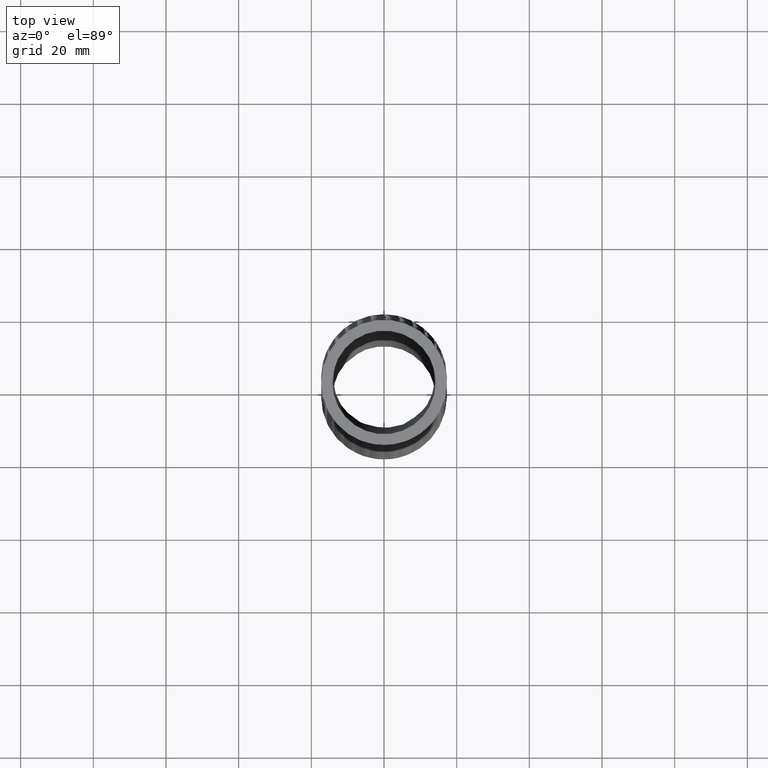
[diagram: clean part render]
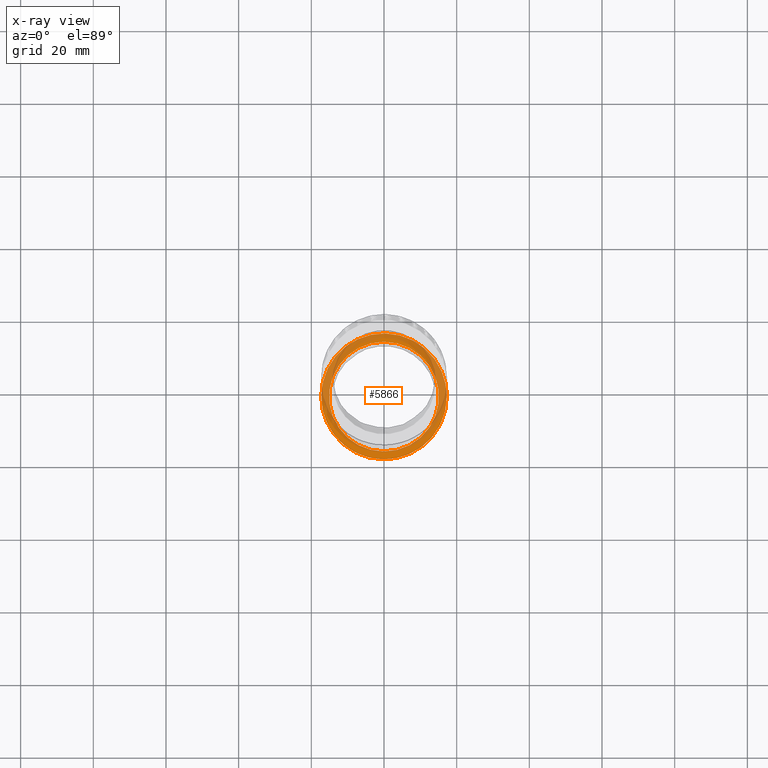
[diagram: x-ray — body ghosted, one internal face saturated and labeled with its STEP entity id]
A machine part, top view, then the same camera in x-ray: the body is ghosted and one INTERNAL B-rep face — a face not visible from any outside direction — is saturated and labeled: STEP entity #5866.
In plain terms, the highlighted planar face has unit normal (0, -0, 1).
Its self-contained STEP definition (entity closure, byte-faithful):
#4209 = EDGE_CURVE ( 'NONE', #4211, #4214, #15574, .T. ) ;
#4211 = VERTEX_POINT ( 'NONE', #15575 ) ;
#4214 = VERTEX_POINT ( 'NONE', #15572 ) ;
#4464 = EDGE_CURVE ( 'NONE', #4214, #4211, #19194, .T. ) ;
#5020 = VERTEX_POINT ( 'NONE', #10822 ) ;
#5021 = VERTEX_POINT ( 'NONE', #10821 ) ;
#5025 = EDGE_CURVE ( 'NONE', #5021, #5020, #10820, .T. ) ;
#5850 = EDGE_CURVE ( 'NONE', #5020, #5021, #20248, .T. ) ;
#5857 = ORIENTED_EDGE ( 'NONE', *, *, #5025, .F. ) ;
#5859 = ORIENTED_EDGE ( 'NONE', *, *, #5850, .F. ) ;
#5863 = ORIENTED_EDGE ( 'NONE', *, *, #4464, .F. ) ;
#5864 = EDGE_LOOP ( 'NONE', ( #5857, #5859 ) ) ;
#5866 = ADVANCED_FACE ( 'NONE', ( #20300, #20299 ), #20332, .T. ) ;
#5867 = ORIENTED_EDGE ( 'NONE', *, *, #4209, .F. ) ;
#5869 = EDGE_LOOP ( 'NONE', ( #5867, #5863 ) ) ;
#10816 = DIRECTION ( 'NONE',  ( 0.0000000000000000000, -1.000000000000000000, 0.0000000000000000000 ) ) ;
#10817 = DIRECTION ( 'NONE',  ( 0.0000000000000000000, -1.734723475976807100E-018, 1.000000000000000000 ) ) ;
#10818 = CARTESIAN_POINT ( 'NONE',  ( 0.0000000000000000000, -0.02362332709236139200, -7.473392953530790800 ) ) ;
#10819 = AXIS2_PLACEMENT_3D ( 'NONE', #10818, #10817, #10816 ) ;
#10820 = CIRCLE ( 'NONE', #10819, 0.5950000000000002000 ) ;
#10821 = CARTESIAN_POINT ( 'NONE',  ( 0.0000000000000000000, -0.6186233270923615600, -7.473392953530790800 ) ) ;
#10822 = CARTESIAN_POINT ( 'NONE',  ( 7.286648454926752700E-017, 0.5713766729076387200, -7.473392953530790800 ) ) ;
#15528 = CARTESIAN_POINT ( 'NONE',  ( 0.1106814445971021100, -0.6946099106361443000, -7.473392953530789000 ) ) ;
#15530 = CARTESIAN_POINT ( 'NONE',  ( 0.1759460441836651300, -0.6816101734470223500, -7.473392953530790800 ) ) ;
#15532 = CARTESIAN_POINT ( 'NONE',  ( 0.2185521832983498300, -0.6687187943583023900, -7.473392953530796100 ) ) ;
#15534 = CARTESIAN_POINT ( 'NONE',  ( 0.3016120015362772600, -0.6342283596159969900, -7.473392953530794400 ) ) ;
#15536 = CARTESIAN_POINT ( 'NONE',  ( 0.3407598208029017400, -0.6131815282807715500, -7.473392953530791700 ) ) ;
#15538 = CARTESIAN_POINT ( 'NONE',  ( 0.3960545227818804100, -0.5761420361169332600, -7.473392953530794400 ) ) ;
#15540 = CARTESIAN_POINT ( 'NONE',  ( 0.4139106677936285600, -0.5628772133752308900, -7.473392953530787300 ) ) ;
#15542 = CARTESIAN_POINT ( 'NONE',  ( 0.4484457992491509600, -0.5344689223631669000, -7.473392953530787300 ) ) ;
#15544 = CARTESIAN_POINT ( 'NONE',  ( 0.4651530502151605100, -0.5192789588199441300, -7.473392953530788100 ) ) ;
#15546 = CARTESIAN_POINT ( 'NONE',  ( 0.5124013336726713800, -0.4718683399283489200, -7.473392953530787300 ) ) ;
#15548 = CARTESIAN_POINT ( 'NONE',  ( 0.5404818473240107200, -0.4375381150760500600, -7.473392953530787300 ) ) ;
#15550 = CARTESIAN_POINT ( 'NONE',  ( 0.5775240784299485700, -0.3819970731399520700, -7.473392953530787300 ) ) ;
#15552 = CARTESIAN_POINT ( 'NONE',  ( 0.5890579060613074800, -0.3627301762273905100, -7.473392953530791700 ) ) ;
#15554 = CARTESIAN_POINT ( 'NONE',  ( 0.6101774119966828500, -0.3231205662017073200, -7.473392953530790800 ) ) ;
#15556 = CARTESIAN_POINT ( 'NONE',  ( 0.6196820910986999800, -0.3029486601395903200, -7.473392953530788100 ) ) ;
#15558 = CARTESIAN_POINT ( 'NONE',  ( 0.6451306485290873000, -0.2413663428121725100, -7.473392953530789000 ) ) ;
#15560 = CARTESIAN_POINT ( 'NONE',  ( 0.6580379510490763600, -0.1988993892499501000, -7.473392953530794400 ) ) ;
#15562 = CARTESIAN_POINT ( 'NONE',  ( 0.6711710143586221400, -0.1330320346742376600, -7.473392953530794400 ) ) ;
#15564 = CARTESIAN_POINT ( 'NONE',  ( 0.6744894098091518400, -0.1107215655237049900, -7.473392953530790800 ) ) ;
#15566 = CARTESIAN_POINT ( 'NONE',  ( 0.6788935072329025400, -0.06609972855633375300, -7.473392953530790800 ) ) ;
#15568 = CARTESIAN_POINT ( 'NONE',  ( 0.6799999999999998300, -0.04369758788995287800, -7.473392953530791700 ) ) ;
#15569 = CARTESIAN_POINT ( 'NONE',  ( 0.6799999999999998300, -0.02120331437920919300, -7.473392953530791700 ) ) ;
#15572 = CARTESIAN_POINT ( 'NONE',  ( -0.6799999999999998300, -0.02120331437920896400, -7.473392953530793500 ) ) ;
#15574 = B_SPLINE_CURVE_WITH_KNOTS ( 'NONE', 3,
 ( #15569, #15568, #15566, #15564, #15562, #15560, #15558, #15556, #15554, #15552, #15550, #15548, #15546, #15544, #15542, #15540, #15538, #15536, #15534, #15532, #15530, #15528, #15685, #15684, #15683, #15681, #15679, #15677, #15675, #15673, #15671, #15669, #15667, #15665, #15663, #15661, #15659, #15657, #15655, #15653, #15651, #15649, #15647, #15645, #15643, #15641, #15639, #15637, #15635 ),
 .UNSPECIFIED., .F., .F.,
 ( 4, 2, 2, 2, 2, 2, 2, 2, 2, 2, 2, 2, 2, 2, 2, 2, 2, 2, 1, 2, 2, 2, 2, 2, 4 ),
 ( 0.0000000000000000000, 0.001708152414843739300, 0.003416304829687478700, 0.006832609659374957300, 0.008540762074218697500, 0.01024891448906243900, 0.01366521931874991600, 0.01537337173359365700, 0.01708152414843739500, 0.02049782897812487500, 0.02391413380781235200, 0.02562228622265609300, 0.02733043863749982900, 0.03074674346718730600, 0.03245489588203104300, 0.03416304829687478300, 0.03757935312656226400, 0.03928750554140600400, 0.04099565795624974400, 0.04270381037109348400, 0.04441196278593722400, 0.04782826761562469800, 0.04953642003046843100, 0.05124457244531217100, 0.05466087727499964500 ),
 .UNSPECIFIED. ) ;
#15575 = CARTESIAN_POINT ( 'NONE',  ( 0.6799999999999998300, -0.02120331437920919300, -7.473392953530791700 ) ) ;
#15635 = CARTESIAN_POINT ( 'NONE',  ( -0.6799999999999998300, -0.02120331437920896400, -7.473392953530793500 ) ) ;
#15637 = CARTESIAN_POINT ( 'NONE',  ( -0.6799999999999997200, -0.06581397836407598700, -7.473392953530789000 ) ) ;
#15639 = CARTESIAN_POINT ( 'NONE',  ( -0.6756789233401688800, -0.1099574831942072600, -7.473392953530783700 ) ) ;
#15641 = CARTESIAN_POINT ( 'NONE',  ( -0.6627525627692753000, -0.1754759877235448900, -7.473392953530784600 ) ) ;
#15643 = CARTESIAN_POINT ( 'NONE',  ( -0.6573334567097675100, -0.1972901030265582500, -7.473392953530796100 ) ) ;
#15645 = CARTESIAN_POINT ( 'NONE',  ( -0.6443760401877058900, -0.2402451855545519900, -7.473392953530794400 ) ) ;
#15647 = CARTESIAN_POINT ( 'NONE',  ( -0.6368914698754254400, -0.2612439795765459900, -7.473392953530793500 ) ) ;
#15649 = CARTESIAN_POINT ( 'NONE',  ( -0.6115081778701677600, -0.3228460065667208000, -7.473392953530796100 ) ) ;
#15651 = CARTESIAN_POINT ( 'NONE',  ( -0.5907077701661559400, -0.3620681613112920500, -7.473392953530788100 ) ) ;
#15653 = CARTESIAN_POINT ( 'NONE',  ( -0.5535271168347287700, -0.4180551497474374000, -7.473392953530787300 ) ) ;
#15655 = CARTESIAN_POINT ( 'NONE',  ( -0.5401485299771056100, -0.4361853514680376100, -7.473392953530791700 ) ) ;
#15657 = CARTESIAN_POINT ( 'NONE',  ( -0.5119656598711065400, -0.4707011331933605400, -7.473392953530791700 ) ) ;
#15659 = CARTESIAN_POINT ( 'NONE',  ( -0.4822272560112738600, -0.5036763332455275200, -7.473392953530796100 ) ) ;
#15661 = CARTESIAN_POINT ( 'NONE',  ( -0.4494175947961692200, -0.5336097974411691000, -7.473392953530788100 ) ) ;
#15663 = CARTESIAN_POINT ( 'NONE',  ( -0.4150477313572548100, -0.5619980563678841400, -7.473392953530789000 ) ) ;
#15665 = CARTESIAN_POINT ( 'NONE',  ( -0.3969764173826343900, -0.5754870828903108100, -7.473392953530797000 ) ) ;
#15667 = CARTESIAN_POINT ( 'NONE',  ( -0.3412200150845354800, -0.6129458261486441200, -7.473392953530797000 ) ) ;
#15669 = CARTESIAN_POINT ( 'NONE',  ( -0.3021104290278503500, -0.6339419358593502100, -7.473392953530797000 ) ) ;
#15671 = CARTESIAN_POINT ( 'NONE',  ( -0.2406012969264890400, -0.6596012006070026700, -7.473392953530798800 ) ) ;
#15673 = CARTESIAN_POINT ( 'NONE',  ( -0.2196207411613793300, -0.6671748600276422600, -7.473392953530793500 ) ) ;
#15675 = CARTESIAN_POINT ( 'NONE',  ( -0.1766729293072303300, -0.6802983485019713500, -7.473392953530797900 ) ) ;
#15677 = CARTESIAN_POINT ( 'NONE',  ( -0.1549142682663978100, -0.6857764967551680500, -7.473392953530792600 ) ) ;
#15679 = CARTESIAN_POINT ( 'NONE',  ( -0.08946346908533660300, -0.6988809778855594700, -7.473392953530793500 ) ) ;
#15681 = CARTESIAN_POINT ( 'NONE',  ( -0.04532392179567911600, -0.7032941409956035000, -7.473392953530791700 ) ) ;
#15683 = CARTESIAN_POINT ( 'NONE',  ( 0.02165193086968562900, -0.7033606704831747400, -7.473392953530789000 ) ) ;
#15684 = CARTESIAN_POINT ( 'NONE',  ( 0.04421354491846982100, -0.7022643462721158700, -7.473392953530789000 ) ) ;
#15685 = CARTESIAN_POINT ( 'NONE',  ( 0.08868805822265121700, -0.6978836031342600100, -7.473392953530790800 ) ) ;
#18677 = CARTESIAN_POINT ( 'NONE',  ( 0.4494649218585178900, 0.4926025345701008400, -7.473392953530793500 ) ) ;
#18678 = CARTESIAN_POINT ( 'NONE',  ( 0.4152322302581350500, 0.5208114088829064500, -7.473392953530787300 ) ) ;
#18680 = CARTESIAN_POINT ( 'NONE',  ( 0.3597468441356566600, 0.5580642308067261800, -7.473392953530784600 ) ) ;
#18681 = CARTESIAN_POINT ( 'NONE',  ( 0.3404521763538087000, 0.5696865056794939700, -7.473392953530793500 ) ) ;
#18682 = CARTESIAN_POINT ( 'NONE',  ( 0.3009569161739780200, 0.5908750960819537700, -7.473392953530792600 ) ) ;
#18684 = CARTESIAN_POINT ( 'NONE',  ( 0.2808276231456927100, 0.6004188479264110900, -7.473392953530788100 ) ) ;
#18685 = CARTESIAN_POINT ( 'NONE',  ( 0.2193256916414474400, 0.6259836271252307000, -7.473392953530787300 ) ) ;
#18686 = CARTESIAN_POINT ( 'NONE',  ( 0.1768497581960380700, 0.6389677884803242100, -7.473392953530796100 ) ) ;
#18704 = CARTESIAN_POINT ( 'NONE',  ( 0.1108512023999562700, 0.6521554194082938000, -7.473392953530797000 ) ) ;
#18705 = CARTESIAN_POINT ( 'NONE',  ( 0.08861291804595707000, 0.6554556802482896000, -7.473392953530791700 ) ) ;
#18706 = CARTESIAN_POINT ( 'NONE',  ( 0.04430413425603842900, 0.6598202543947588900, -7.473392953530790800 ) ) ;
#19157 = CARTESIAN_POINT ( 'NONE',  ( 0.02213758800183341200, 0.6609046537845353300, -7.473392953530791700 ) ) ;
#19159 = CARTESIAN_POINT ( 'NONE',  ( -0.02221954425893603000, 0.6609019725635294500, -7.473392953530792600 ) ) ;
#19160 = CARTESIAN_POINT ( 'NONE',  ( -0.04441012988117885900, 0.6598149266678460200, -7.473392953530788100 ) ) ;
#19161 = CARTESIAN_POINT ( 'NONE',  ( -0.08881577047815579500, 0.6554305496467123200, -7.473392953530789000 ) ) ;
#19162 = CARTESIAN_POINT ( 'NONE',  ( -0.1111498736207185300, 0.6521034859475641800, -7.473392953530794400 ) ) ;
#19163 = CARTESIAN_POINT ( 'NONE',  ( -0.1769335723764166000, 0.6389354278222230100, -7.473392953530792600 ) ) ;
#19164 = CARTESIAN_POINT ( 'NONE',  ( -0.2193701949169168100, 0.6259718741190324300, -7.473392953530790800 ) ) ;
#19165 = CARTESIAN_POINT ( 'NONE',  ( -0.2809372676021556500, 0.6003698877480053700, -7.473392953530791700 ) ) ;
#19166 = CARTESIAN_POINT ( 'NONE',  ( -0.3011091733115234800, 0.5908024847482695700, -7.473392953530792600 ) ) ;
#19168 = CARTESIAN_POINT ( 'NONE',  ( -0.3407278582520795200, 0.5695294358863729500, -7.473392953530790800 ) ) ;
#19169 = CARTESIAN_POINT ( 'NONE',  ( -0.3598810461574033500, 0.5579787548400966200, -7.473392953530793500 ) ) ;
#19171 = CARTESIAN_POINT ( 'NONE',  ( -0.4152571258501341900, 0.5207854029347266400, -7.473392953530792600 ) ) ;
#19172 = CARTESIAN_POINT ( 'NONE',  ( -0.4494992889591237200, 0.4925804446604543100, -7.473392953530788100 ) ) ;
#19173 = CARTESIAN_POINT ( 'NONE',  ( -0.4967994504369265300, 0.4450948838828144300, -7.473392953530786400 ) ) ;
#19174 = CARTESIAN_POINT ( 'NONE',  ( -0.5119312374311124600, 0.4283236857098821100, -7.473392953530792600 ) ) ;
#19176 = CARTESIAN_POINT ( 'NONE',  ( -0.5401772904616607400, 0.3937328546193217300, -7.473392953530794400 ) ) ;
#19177 = CARTESIAN_POINT ( 'NONE',  ( -0.5533708132744131800, 0.3758453262495664000, -7.473392953530789000 ) ) ;
#19178 = CARTESIAN_POINT ( 'NONE',  ( -0.5779376110257956600, 0.3389107344731666600, -7.473392953530789000 ) ) ;
#19179 = CARTESIAN_POINT ( 'NONE',  ( -0.5893108273869766000, 0.3198636337514970100, -7.473392953530787300 ) ) ;
#19181 = CARTESIAN_POINT ( 'NONE',  ( -0.6102228325964940100, 0.2806008645520662300, -7.473392953530787300 ) ) ;
#19182 = CARTESIAN_POINT ( 'NONE',  ( -0.6197800036957553700, 0.2603407433608925200, -7.473392953530791700 ) ) ;
#19184 = CARTESIAN_POINT ( 'NONE',  ( -0.6454813586075927000, 0.1980254379846947100, -7.473392953530791700 ) ) ;
#19185 = CARTESIAN_POINT ( 'NONE',  ( -0.6582841155655089200, 0.1554704134391146100, -7.473392953530789000 ) ) ;
#19187 = CARTESIAN_POINT ( 'NONE',  ( -0.6712381769892844500, 0.09017835861537119900, -7.473392953530787300 ) ) ;
#19188 = CARTESIAN_POINT ( 'NONE',  ( -0.6745068488510542700, 0.06816929633153344400, -7.473392953530786400 ) ) ;
#19189 = CARTESIAN_POINT ( 'NONE',  ( -0.6788947031370092800, 0.02364922274214127000, -7.473392953530787300 ) ) ;
#19191 = CARTESIAN_POINT ( 'NONE',  ( -0.6799999999999998300, 0.001102897452116923600, -7.473392953530790800 ) ) ;
#19192 = CARTESIAN_POINT ( 'NONE',  ( -0.6799999999999998300, -0.02120331437920896400, -7.473392953530793500 ) ) ;
#19194 = B_SPLINE_CURVE_WITH_KNOTS ( 'NONE', 3,
 ( #19192, #19191, #19189, #19188, #19187, #19185, #19184, #19182, #19181, #19179, #19178, #19177, #19176, #19174, #19173, #19172, #19171, #19169, #19168, #19166, #19165, #19164, #19163, #19162, #19161, #19160, #19159, #19157, #18706, #18705, #18704, #18686, #18685, #18684, #18682, #18681, #18680, #18678, #18677, #19278, #19277, #19274, #19273, #19271, #19269, #19267, #19265, #19263, #19262, #19261, #19259, #19258, #19255, #19253 ),
 .UNSPECIFIED., .F., .F.,
 ( 4, 2, 2, 2, 2, 2, 2, 2, 2, 2, 2, 2, 2, 2, 2, 2, 2, 2, 2, 2, 2, 2, 2, 2, 2, 2, 4 ),
 ( 0.05466087727499964500, 0.05636909706830377900, 0.05807731686160791400, 0.06149375644821617600, 0.06320197624152031100, 0.06491019603482443800, 0.06661841582812858000, 0.06832663562143270800, 0.07174307520804097700, 0.07345129500134510400, 0.07515951479464924600, 0.07857595438125751500, 0.08028417417456164300, 0.08199239396786578400, 0.08370061376116991200, 0.08540883355447405300, 0.08882527314108232300, 0.09053349293438645000, 0.09224171272769057800, 0.09565815231429884700, 0.09736637210760298900, 0.09907459190090711600, 0.1024910314875153900, 0.1041992512808195300, 0.1059074710741236500, 0.1076156908674277800, 0.1093239106607319200 ),
 .UNSPECIFIED. ) ;
#19253 = CARTESIAN_POINT ( 'NONE',  ( 0.6799999999999998300, -0.02120331437920919300, -7.473392953530791700 ) ) ;
#19255 = CARTESIAN_POINT ( 'NONE',  ( 0.6799999999999996000, 0.001291846423267837800, -7.473392953530788100 ) ) ;
#19258 = CARTESIAN_POINT ( 'NONE',  ( 0.6788831792186593700, 0.02380218608407059400, -7.473392953530787300 ) ) ;
#19259 = CARTESIAN_POINT ( 'NONE',  ( 0.6744970506680924000, 0.06823249565757776000, -7.473392953530789000 ) ) ;
#19261 = CARTESIAN_POINT ( 'NONE',  ( 0.6712317081766024900, 0.09021605295038386000, -7.473392953530789000 ) ) ;
#19262 = CARTESIAN_POINT ( 'NONE',  ( 0.6625967066936917500, 0.1337286638255906500, -7.473392953530790800 ) ) ;
#19263 = CARTESIAN_POINT ( 'NONE',  ( 0.6572270012383759600, 0.1552577073724220900, -7.473392953530791700 ) ) ;
#19265 = CARTESIAN_POINT ( 'NONE',  ( 0.6443625302968347700, 0.1978568104354417600, -7.473392953530790800 ) ) ;
#19267 = CARTESIAN_POINT ( 'NONE',  ( 0.6368420847330397100, 0.2189886690789626100, -7.473392953530788100 ) ) ;
#19269 = CARTESIAN_POINT ( 'NONE',  ( 0.6111370269515381500, 0.2812631948397372700, -7.473392953530788100 ) ) ;
#19271 = CARTESIAN_POINT ( 'NONE',  ( 0.5902127123785171300, 0.3204617682698377400, -7.473392953530791700 ) ) ;
#19273 = CARTESIAN_POINT ( 'NONE',  ( 0.5533335344583305600, 0.3758984401552486500, -7.473392953530789000 ) ) ;
#19274 = CARTESIAN_POINT ( 'NONE',  ( 0.5401183498454381600, 0.3938130484939224600, -7.473392953530792600 ) ) ;
#19277 = CARTESIAN_POINT ( 'NONE',  ( 0.5117942242326406500, 0.4284834061927356700, -7.473392953530793500 ) ) ;
#19278 = CARTESIAN_POINT ( 'NONE',  ( 0.4966752067253342200, 0.4452257926852812300, -7.473392953530793500 ) ) ;
#20244 = DIRECTION ( 'NONE',  ( 0.0000000000000000000, -1.000000000000000000, 0.0000000000000000000 ) ) ;
#20245 = DIRECTION ( 'NONE',  ( 0.0000000000000000000, -1.734723475976807100E-018, 1.000000000000000000 ) ) ;
#20246 = CARTESIAN_POINT ( 'NONE',  ( 0.0000000000000000000, -0.02362332709236139200, -7.473392953530790800 ) ) ;
#20247 = AXIS2_PLACEMENT_3D ( 'NONE', #20246, #20245, #20244 ) ;
#20248 = CIRCLE ( 'NONE', #20247, 0.5950000000000002000 ) ;
#20299 = FACE_BOUND ( 'NONE', #5864, .T. ) ;
#20300 = FACE_OUTER_BOUND ( 'NONE', #5869, .T. ) ;
#20328 = DIRECTION ( 'NONE',  ( 0.0000000000000000000, -1.000000000000000000, -1.734723475976807100E-018 ) ) ;
#20329 = DIRECTION ( 'NONE',  ( 0.0000000000000000000, -1.734723475976807100E-018, 1.000000000000000000 ) ) ;
#20330 = CARTESIAN_POINT ( 'NONE',  ( 0.0000000000000000000, 0.6713766729076386900, -7.473392953530790800 ) ) ;
#20331 = AXIS2_PLACEMENT_3D ( 'NONE', #20330, #20329, #20328 ) ;
#20332 = PLANE ( 'NONE',  #20331 ) ;